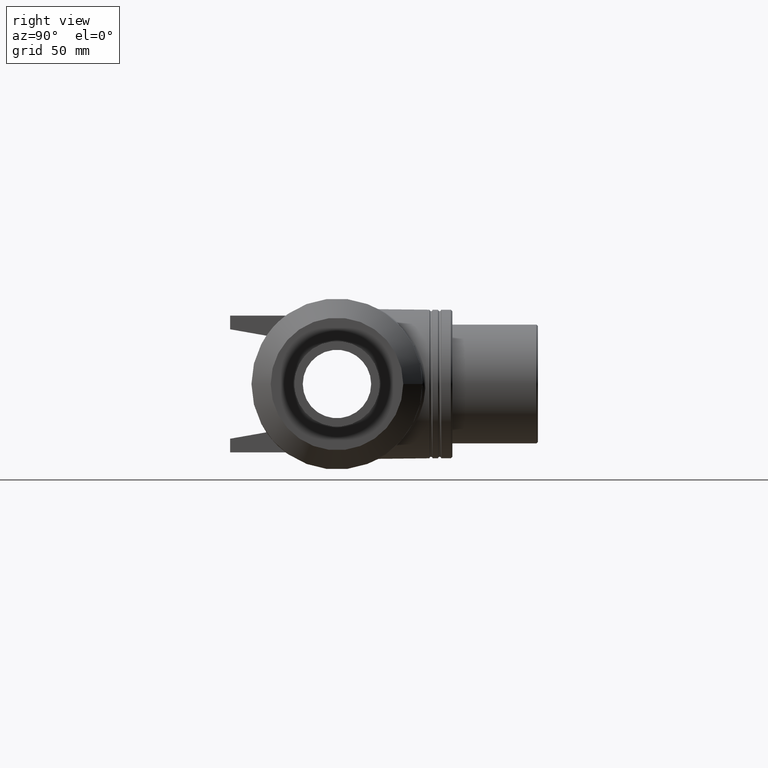
[diagram: clean part render]
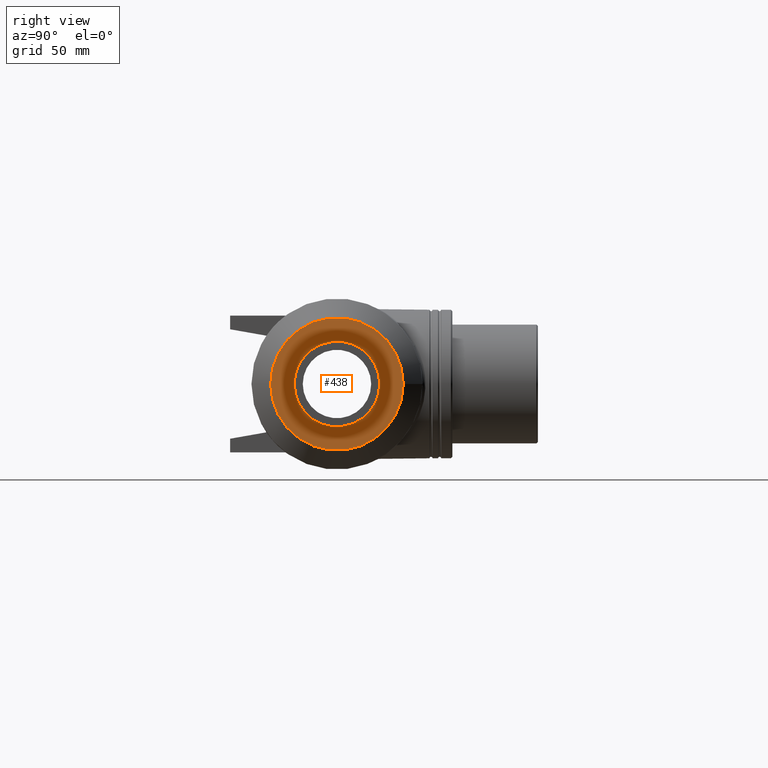
[diagram: same view with one face highlighted and labeled with its STEP entity id]
A machine part, right view. The second image highlights one B-rep face of the part: STEP entity #438.
In plain terms, the highlighted planar face has unit normal (1, 0, 0).
Its self-contained STEP definition (entity closure, byte-faithful):
#31=PLANE('',#491);
#94=FACE_BOUND('',#186,.T.);
#137=FACE_OUTER_BOUND('',#185,.T.);
#185=EDGE_LOOP('',(#396));
#186=EDGE_LOOP('',(#397));
#221=CIRCLE('',#490,31.);
#222=CIRCLE('',#492,20.);
#260=VERTEX_POINT('',#962);
#261=VERTEX_POINT('',#965);
#308=EDGE_CURVE('',#260,#260,#221,.T.);
#309=EDGE_CURVE('',#261,#261,#222,.T.);
#396=ORIENTED_EDGE('',*,*,#308,.T.);
#397=ORIENTED_EDGE('',*,*,#309,.F.);
#438=ADVANCED_FACE('',(#137,#94),#31,.T.);
#490=AXIS2_PLACEMENT_3D('',#963,#612,#613);
#491=AXIS2_PLACEMENT_3D('',#964,#614,#615);
#492=AXIS2_PLACEMENT_3D('',#966,#616,#617);
#612=DIRECTION('center_axis',(1.,0.,0.));
#613=DIRECTION('ref_axis',(0.,0.,-1.));
#614=DIRECTION('center_axis',(1.,0.,0.));
#615=DIRECTION('ref_axis',(0.,0.,-1.));
#616=DIRECTION('center_axis',(1.,0.,0.));
#617=DIRECTION('ref_axis',(0.,0.,-1.));
#962=CARTESIAN_POINT('',(47.,31.,0.));
#963=CARTESIAN_POINT('Origin',(47.,0.,0.));
#964=CARTESIAN_POINT('Origin',(47.,20.,0.));
#965=CARTESIAN_POINT('',(47.,20.,0.));
#966=CARTESIAN_POINT('Origin',(47.,0.,0.));